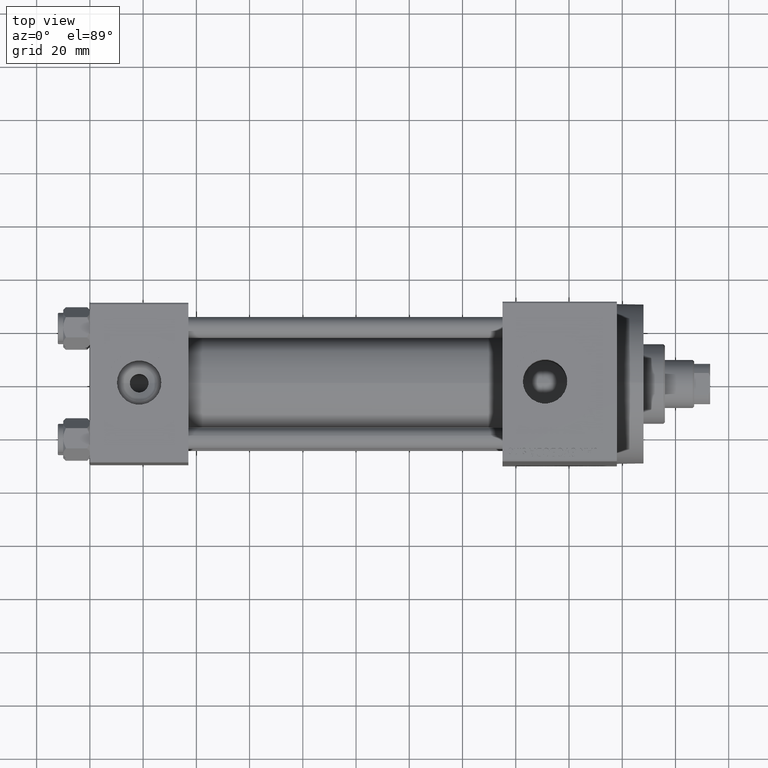
[diagram: clean part render]
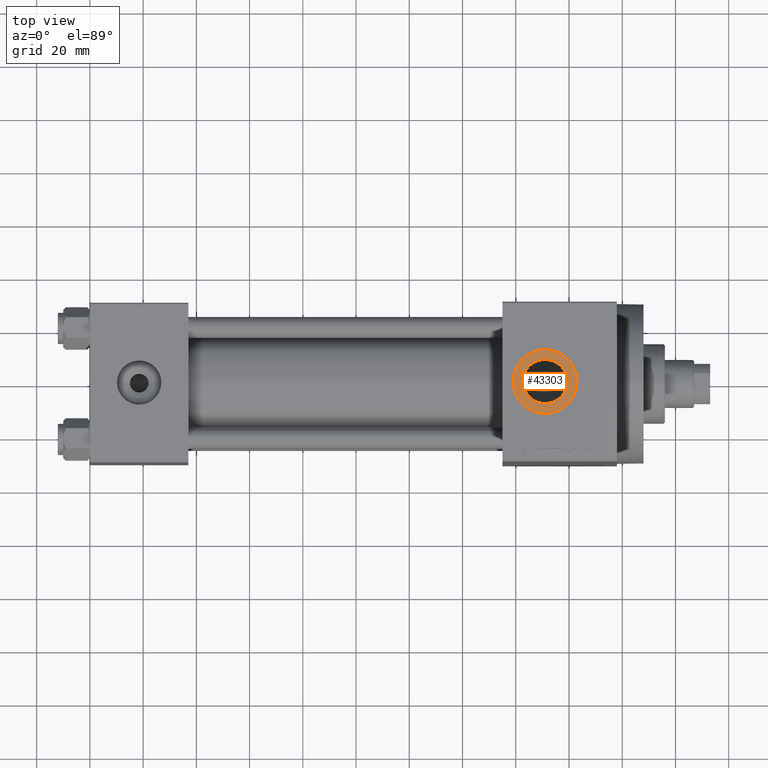
[diagram: same view with one face highlighted and labeled with its STEP entity id]
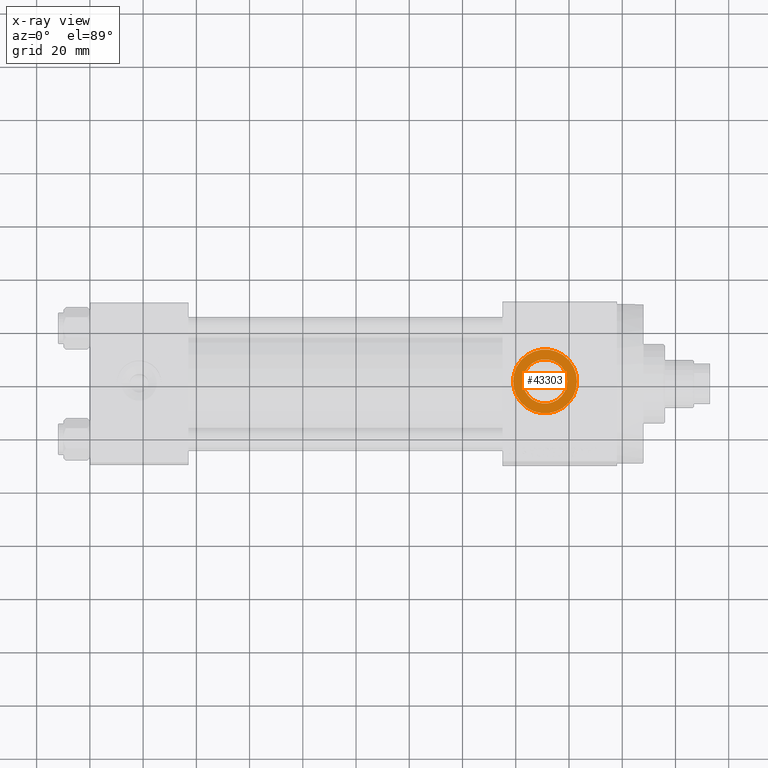
[diagram: x-ray of the same camera — body ghosted, the highlighted face saturated]
A machine part, top view. The second image highlights one B-rep face of the part: STEP entity #43303.
The next image is the same camera in x-ray: the body ghosted, the highlighted face saturated — about 0% of this face is hidden behind the body in this view.
In plain terms, the highlighted planar face has unit normal (0, 0, 1).
Its self-contained STEP definition (entity closure, byte-faithful):
#1194 = CARTESIAN_POINT ( 'NONE',  ( 170.9999999999999716, 6.302828629382400162E-15, 54.29999999999999716 ) ) ;
#1427 = DIRECTION ( 'NONE',  ( -0.000000000000000000, -0.000000000000000000, -1.000000000000000000 ) ) ;
#2385 = CIRCLE ( 'NONE', #28405, 8.330000000000003624 ) ;
#3833 = VERTEX_POINT ( 'NONE', #34782 ) ;
#5255 = ORIENTED_EDGE ( 'NONE', *, *, #41053, .T. ) ;
#6574 = DIRECTION ( 'NONE',  ( 1.000000000000000000, 0.000000000000000000, 0.000000000000000000 ) ) ;
#7278 = DIRECTION ( 'NONE',  ( 0.000000000000000000, 0.000000000000000000, 1.000000000000000000 ) ) ;
#7745 = FACE_OUTER_BOUND ( 'NONE', #9005, .T. ) ;
#7900 = ORIENTED_EDGE ( 'NONE', *, *, #10055, .T. ) ;
#8409 = ORIENTED_EDGE ( 'NONE', *, *, #11254, .T. ) ;
#9005 = EDGE_LOOP ( 'NONE', ( #27117, #7900 ) ) ;
#9396 = AXIS2_PLACEMENT_3D ( 'NONE', #33693, #30563, #44740 ) ;
#10055 = EDGE_CURVE ( 'NONE', #42892, #30346, #44645, .T. ) ;
#10880 = PLANE ( 'NONE',  #32302 ) ;
#11254 = EDGE_CURVE ( 'NONE', #3833, #45017, #17863, .T. ) ;
#12070 = DIRECTION ( 'NONE',  ( 1.000000000000000000, 0.000000000000000000, 0.000000000000000000 ) ) ;
#13295 = DIRECTION ( 'NONE',  ( 0.000000000000000000, 0.000000000000000000, 1.000000000000000000 ) ) ;
#14722 = FACE_BOUND ( 'NONE', #39410, .T. ) ;
#16269 = CARTESIAN_POINT ( 'NONE',  ( 183.0000000000000000, 6.302828629382399373E-15, 54.29999999999999716 ) ) ;
#16651 = CARTESIAN_POINT ( 'NONE',  ( 170.9999999999999716, 6.302828629382399373E-15, 54.29999999999999716 ) ) ;
#17382 = CIRCLE ( 'NONE', #18151, 12.00000000000001066 ) ;
#17863 = CIRCLE ( 'NONE', #38547, 8.330000000000003624 ) ;
#18151 = AXIS2_PLACEMENT_3D ( 'NONE', #16651, #13295, #6574 ) ;
#19176 = DIRECTION ( 'NONE',  ( 1.000000000000000000, 0.000000000000000000, 0.000000000000000000 ) ) ;
#22014 = DIRECTION ( 'NONE',  ( -0.000000000000000000, -0.000000000000000000, -1.000000000000000000 ) ) ;
#27117 = ORIENTED_EDGE ( 'NONE', *, *, #27876, .T. ) ;
#27280 = CARTESIAN_POINT ( 'NONE',  ( 179.3299999999999841, 7.322959413072145713E-15, 54.29999999999999716 ) ) ;
#27876 = EDGE_CURVE ( 'NONE', #30346, #42892, #17382, .T. ) ;
#28405 = AXIS2_PLACEMENT_3D ( 'NONE', #1194, #1427, #19176 ) ;
#30346 = VERTEX_POINT ( 'NONE', #16269 ) ;
#30563 = DIRECTION ( 'NONE',  ( 0.000000000000000000, 0.000000000000000000, 1.000000000000000000 ) ) ;
#32302 = AXIS2_PLACEMENT_3D ( 'NONE', #40158, #7278, #37251 ) ;
#33693 = CARTESIAN_POINT ( 'NONE',  ( 170.9999999999999716, 6.302828629382399373E-15, 54.29999999999999716 ) ) ;
#34782 = CARTESIAN_POINT ( 'NONE',  ( 162.6699999999999875, 6.302828629382400162E-15, 54.29999999999999716 ) ) ;
#37251 = DIRECTION ( 'NONE',  ( 1.000000000000000000, 0.000000000000000000, -0.000000000000000000 ) ) ;
#37985 = CARTESIAN_POINT ( 'NONE',  ( 170.9999999999999716, 6.302828629382400162E-15, 54.29999999999999716 ) ) ;
#38547 = AXIS2_PLACEMENT_3D ( 'NONE', #37985, #22014, #12070 ) ;
#39410 = EDGE_LOOP ( 'NONE', ( #8409, #5255 ) ) ;
#40158 = CARTESIAN_POINT ( 'NONE',  ( 170.9999999999999716, 6.302828629382399373E-15, 54.29999999999999716 ) ) ;
#41053 = EDGE_CURVE ( 'NONE', #45017, #3833, #2385, .T. ) ;
#41735 = CARTESIAN_POINT ( 'NONE',  ( 158.9999999999999716, 7.772404788359223517E-15, 54.29999999999999716 ) ) ;
#42892 = VERTEX_POINT ( 'NONE', #41735 ) ;
#43303 = ADVANCED_FACE ( 'NONE', ( #14722, #7745 ), #10880, .T. ) ;
#44645 = CIRCLE ( 'NONE', #9396, 12.00000000000001066 ) ;
#44740 = DIRECTION ( 'NONE',  ( 1.000000000000000000, 0.000000000000000000, 0.000000000000000000 ) ) ;
#45017 = VERTEX_POINT ( 'NONE', #27280 ) ;